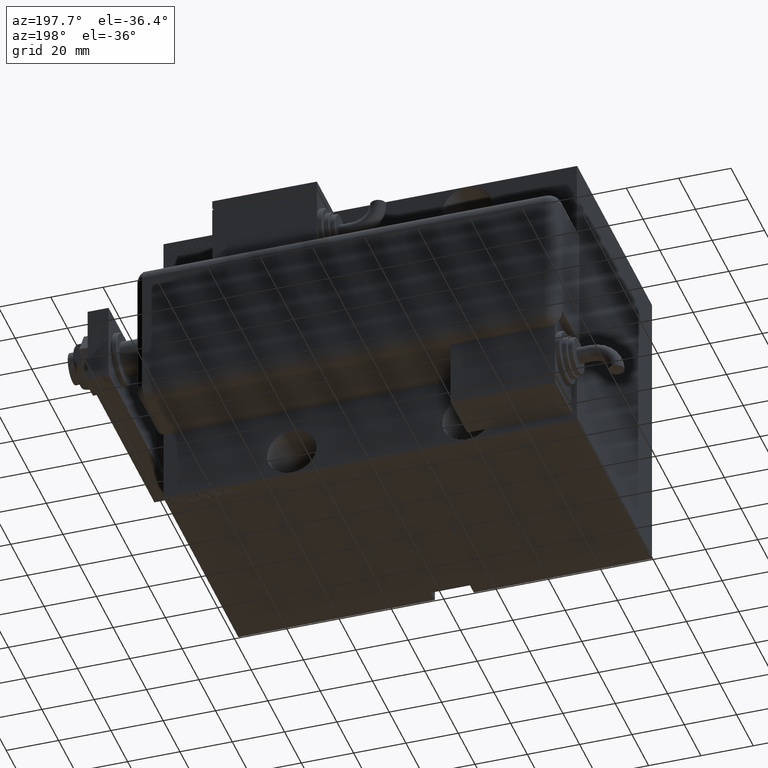
[diagram: clean part render]
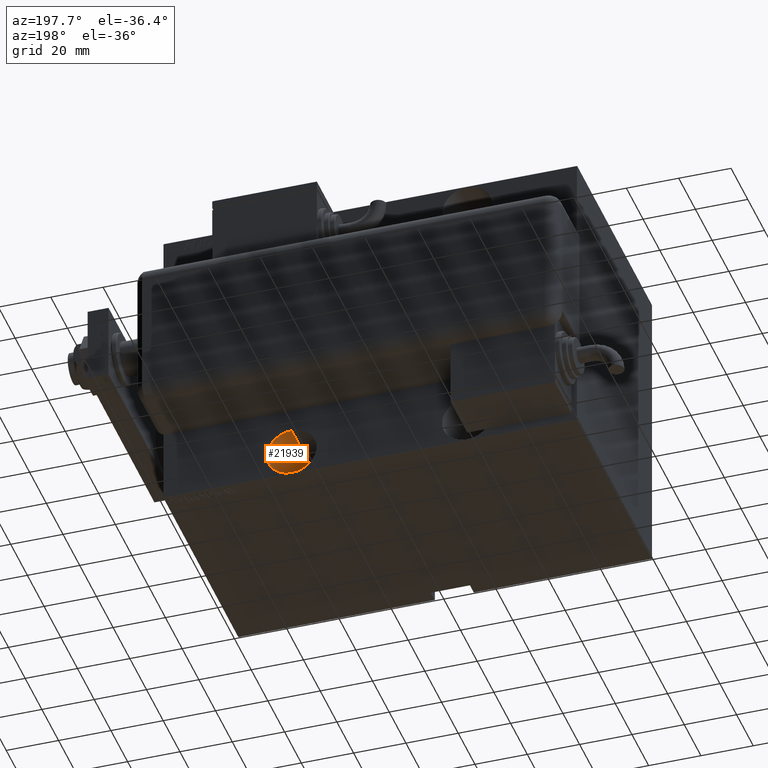
[diagram: same view with one face highlighted and labeled with its STEP entity id]
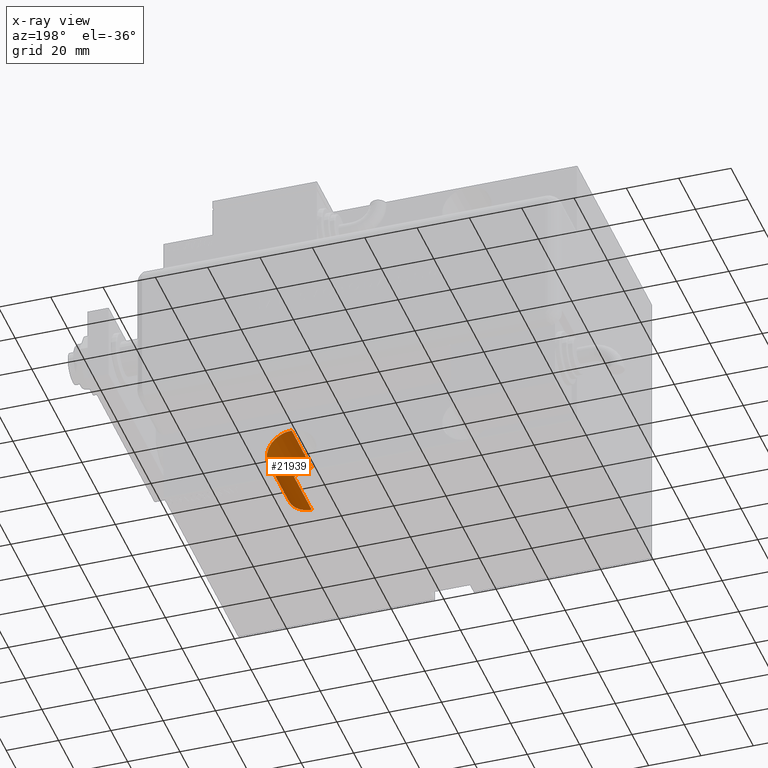
[diagram: x-ray of the same camera — body ghosted, the highlighted face saturated]
A machine part, auxiliary view. The second image highlights one B-rep face of the part: STEP entity #21939.
The next image is the same camera in x-ray: the body ghosted, the highlighted face saturated — about 2% of this face is hidden behind the body in this view.
In plain terms, the highlighted cylindrical surface (edge-blend (fillet) strip) has radius 9.5 mm, axis along (0, 1, -0).
Its self-contained STEP definition (entity closure, byte-faithful):
#211 = DIRECTION ( 'NONE',  ( -0.000000000000000000, -1.000000000000000000, -0.000000000000000000 ) ) ;
#496 = CARTESIAN_POINT ( 'NONE',  ( 49.00000000000000000, -20.99999999999999645, -57.00000000000001421 ) ) ;
#3481 = CYLINDRICAL_SURFACE ( 'NONE', #17583, 9.500000000000001776 ) ;
#3767 = CARTESIAN_POINT ( 'NONE',  ( 49.00000000000000000, -20.99999999999999645, -47.50000000000001421 ) ) ;
#4455 = VECTOR ( 'NONE', #211, 1000.000000000000000 ) ;
#4995 = VERTEX_POINT ( 'NONE', #45246 ) ;
#8499 = LINE ( 'NONE', #31506, #17456 ) ;
#9216 = EDGE_CURVE ( 'NONE', #30115, #40475, #22906, .T. ) ;
#12677 = DIRECTION ( 'NONE',  ( -0.000000000000000000, -1.000000000000000000, -0.000000000000000000 ) ) ;
#15168 = AXIS2_PLACEMENT_3D ( 'NONE', #54119, #41002, #18601 ) ;
#15768 = EDGE_CURVE ( 'NONE', #30115, #36454, #40948, .T. ) ;
#17456 = VECTOR ( 'NONE', #12677, 1000.000000000000000 ) ;
#17501 = DIRECTION ( 'NONE',  ( -0.000000000000000000, -1.000000000000000000, -0.000000000000000000 ) ) ;
#17583 = AXIS2_PLACEMENT_3D ( 'NONE', #3767, #17501, #31255 ) ;
#18601 = DIRECTION ( 'NONE',  ( 0.000000000000000000, 0.000000000000000000, -1.000000000000000000 ) ) ;
#18980 = ORIENTED_EDGE ( 'NONE', *, *, #9216, .T. ) ;
#20424 = EDGE_CURVE ( 'NONE', #40475, #4995, #52778, .T. ) ;
#21939 = ADVANCED_FACE ( 'NONE', ( #49154 ), #3481, .F. ) ;
#22906 = LINE ( 'NONE', #41120, #4455 ) ;
#24205 = AXIS2_PLACEMENT_3D ( 'NONE', #54152, #49980, #53860 ) ;
#26064 = CARTESIAN_POINT ( 'NONE',  ( 49.00000000000000000, -45.00000000000000000, -38.00000000000001421 ) ) ;
#30115 = VERTEX_POINT ( 'NONE', #40168 ) ;
#31255 = DIRECTION ( 'NONE',  ( 0.000000000000000000, 0.000000000000000000, -1.000000000000000000 ) ) ;
#31506 = CARTESIAN_POINT ( 'NONE',  ( 49.00000000000000000, -20.99999999999999645, -57.00000000000001421 ) ) ;
#36454 = VERTEX_POINT ( 'NONE', #496 ) ;
#37497 = EDGE_CURVE ( 'NONE', #36454, #4995, #8499, .T. ) ;
#40168 = CARTESIAN_POINT ( 'NONE',  ( 49.00000000000000000, -20.99999999999999645, -38.00000000000001421 ) ) ;
#40475 = VERTEX_POINT ( 'NONE', #26064 ) ;
#40948 = CIRCLE ( 'NONE', #15168, 9.500000000000001776 ) ;
#41002 = DIRECTION ( 'NONE',  ( 0.000000000000000000, -1.000000000000000000, 0.000000000000000000 ) ) ;
#41120 = CARTESIAN_POINT ( 'NONE',  ( 49.00000000000000000, -20.99999999999999645, -38.00000000000001421 ) ) ;
#44095 = ORIENTED_EDGE ( 'NONE', *, *, #20424, .T. ) ;
#45246 = CARTESIAN_POINT ( 'NONE',  ( 49.00000000000000000, -45.00000000000000000, -57.00000000000001421 ) ) ;
#49154 = FACE_OUTER_BOUND ( 'NONE', #58241, .T. ) ;
#49980 = DIRECTION ( 'NONE',  ( 0.000000000000000000, -1.000000000000000000, 0.000000000000000000 ) ) ;
#50890 = ORIENTED_EDGE ( 'NONE', *, *, #37497, .F. ) ;
#50973 = ORIENTED_EDGE ( 'NONE', *, *, #15768, .F. ) ;
#52778 = CIRCLE ( 'NONE', #24205, 9.500000000000001776 ) ;
#53860 = DIRECTION ( 'NONE',  ( 0.000000000000000000, 0.000000000000000000, -1.000000000000000000 ) ) ;
#54119 = CARTESIAN_POINT ( 'NONE',  ( 49.00000000000000000, -20.99999999999999645, -47.50000000000001421 ) ) ;
#54152 = CARTESIAN_POINT ( 'NONE',  ( 49.00000000000000000, -45.00000000000000000, -47.50000000000001421 ) ) ;
#58241 = EDGE_LOOP ( 'NONE', ( #50973, #18980, #44095, #50890 ) ) ;